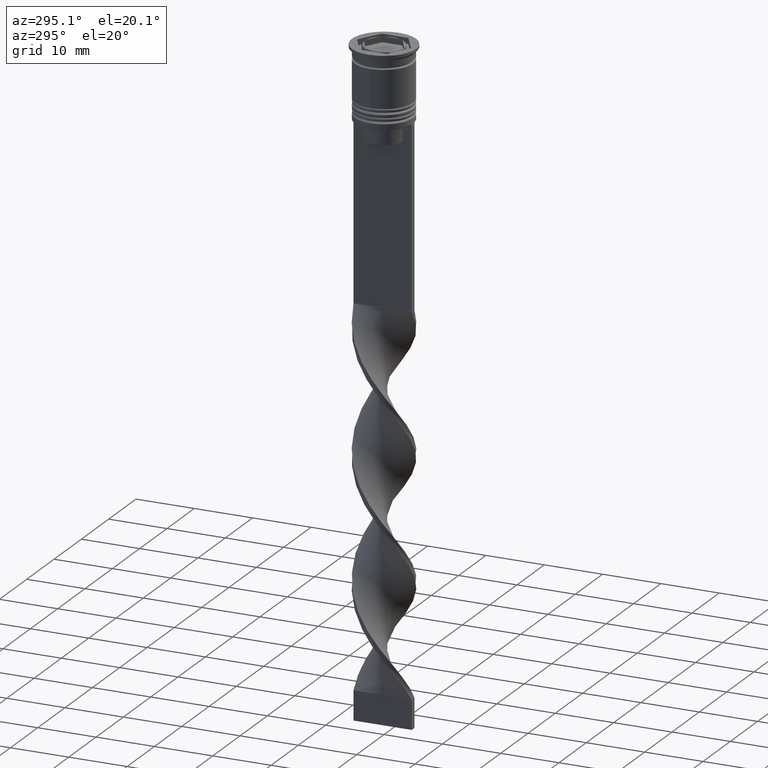
[diagram: clean part render]
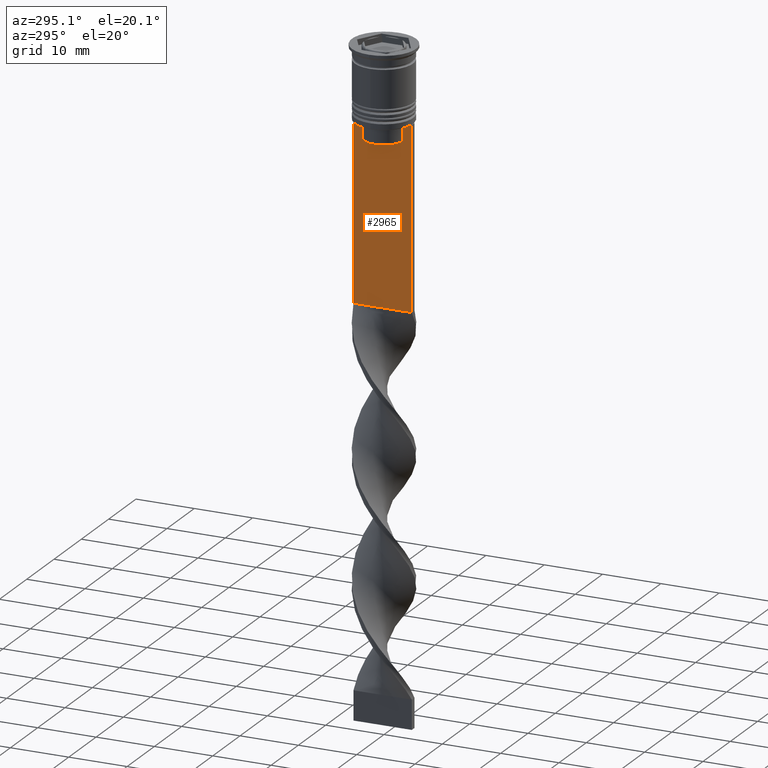
[diagram: same view with one face highlighted and labeled with its STEP entity id]
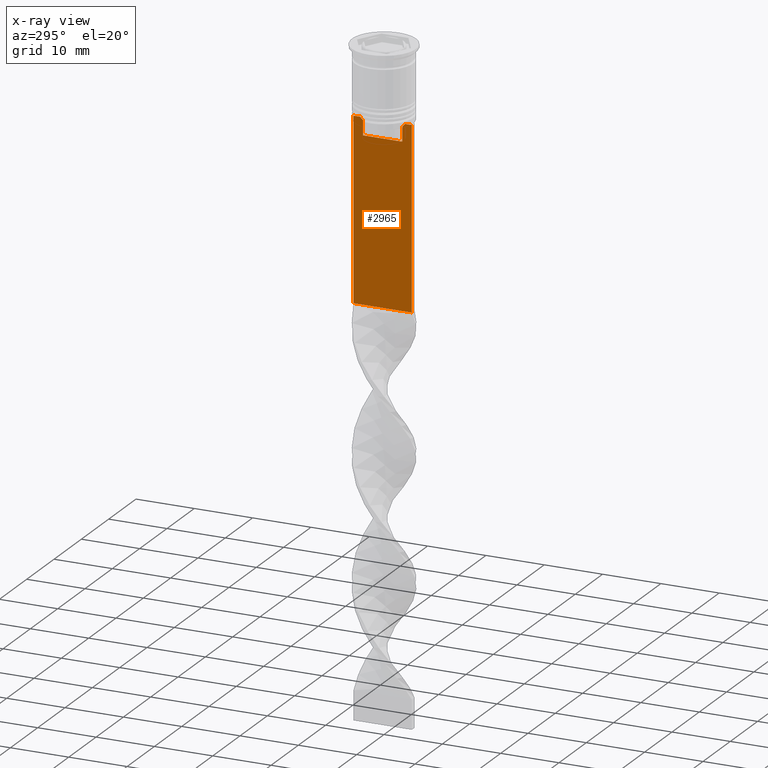
[diagram: x-ray of the same camera — body ghosted, the highlighted face saturated]
A machine part, auxiliary view. The second image highlights one B-rep face of the part: STEP entity #2965.
The next image is the same camera in x-ray: the body ghosted, the highlighted face saturated — about 0% of this face is hidden behind the body in this view.
In plain terms, the highlighted planar face has unit normal (-1, 0, 0).
Its self-contained STEP definition (entity closure, byte-faithful):
#10 = EDGE_CURVE ( 'NONE', #1476, #2890, #869, .T. ) ;
#72 = ORIENTED_EDGE ( 'NONE', *, *, #2470, .F. ) ;
#192 = ORIENTED_EDGE ( 'NONE', *, *, #3045, .F. ) ;
#208 = ORIENTED_EDGE ( 'NONE', *, *, #3204, .F. ) ;
#222 = DIRECTION ( 'NONE',  ( 0.000000000000000000, 1.000000000000000000, 0.000000000000000000 ) ) ;
#268 = DIRECTION ( 'NONE',  ( 0.000000000000000000, -1.000000000000000000, 0.000000000000000000 ) ) ;
#340 = DIRECTION ( 'NONE',  ( 0.000000000000000000, 0.000000000000000000, -1.000000000000000000 ) ) ;
#397 = CARTESIAN_POINT ( 'NONE',  ( -0.5000000000000000000, -3.363034344160045208, -13.00000000000000178 ) ) ;
#436 = ORIENTED_EDGE ( 'NONE', *, *, #682, .F. ) ;
#466 = EDGE_CURVE ( 'NONE', #688, #3192, #2800, .T. ) ;
#505 = LINE ( 'NONE', #3617, #2295 ) ;
#506 = ORIENTED_EDGE ( 'NONE', *, *, #2139, .T. ) ;
#567 = ORIENTED_EDGE ( 'NONE', *, *, #1813, .F. ) ;
#571 = DIRECTION ( 'NONE',  ( -0.000000000000000000, -0.000000000000000000, 1.000000000000000000 ) ) ;
#597 = VECTOR ( 'NONE', #571, 1000.000000000000000 ) ;
#682 = EDGE_CURVE ( 'NONE', #2890, #1889, #505, .T. ) ;
#688 = VERTEX_POINT ( 'NONE', #2774 ) ;
#754 = CARTESIAN_POINT ( 'NONE',  ( -0.5000000000000000000, 3.399999999999998135, -15.50000000000000000 ) ) ;
#772 = CARTESIAN_POINT ( 'NONE',  ( -0.5000000000000000000, 3.867815921162742754, -12.50000000000000000 ) ) ;
#847 = CARTESIAN_POINT ( 'NONE',  ( -0.5000000000000000000, 5.000000000000000888, -12.50000000000000000 ) ) ;
#868 = ORIENTED_EDGE ( 'NONE', *, *, #3081, .F. ) ;
#869 = LINE ( 'NONE', #2062, #1478 ) ;
#897 = VERTEX_POINT ( 'NONE', #3683 ) ;
#922 = ORIENTED_EDGE ( 'NONE', *, *, #10, .F. ) ;
#939 = VERTEX_POINT ( 'NONE', #2524 ) ;
#967 = CARTESIAN_POINT ( 'NONE',  ( -0.5000000000000000000, -3.363034344160045652, -15.50000000000000000 ) ) ;
#1018 = DIRECTION ( 'NONE',  ( 0.000000000000000000, -1.000000000000000000, 0.000000000000000000 ) ) ;
#1111 = CARTESIAN_POINT ( 'NONE',  ( -0.5000000000000000000, 3.531412678228260216, -12.83345231756357840 ) ) ;
#1133 = CARTESIAN_POINT ( 'NONE',  ( -0.5000000000000000000, 3.363034344160045208, -13.00000000000000178 ) ) ;
#1161 = VERTEX_POINT ( 'NONE', #3239 ) ;
#1330 = VERTEX_POINT ( 'NONE', #3026 ) ;
#1410 = ORIENTED_EDGE ( 'NONE', *, *, #466, .F. ) ;
#1412 = DIRECTION ( 'NONE',  ( 0.000000000000000000, -1.000000000000000000, 0.000000000000000000 ) ) ;
#1476 = VERTEX_POINT ( 'NONE', #1700 ) ;
#1478 = VECTOR ( 'NONE', #340, 1000.000000000000000 ) ;
#1496 = EDGE_LOOP ( 'NONE', ( #72, #1410, #2436, #506, #436, #922, #192, #2161, #2631, #567, #868, #208 ) ) ;
#1600 = VECTOR ( 'NONE', #1018, 1000.000000000000000 ) ;
#1620 = CARTESIAN_POINT ( 'NONE',  ( -0.5000000000000000000, 3.363034344160045208, -13.00000000000000178 ) ) ;
#1635 = DIRECTION ( 'NONE',  ( 0.000000000000000000, 0.000000000000000000, -1.000000000000000000 ) ) ;
#1655 = LINE ( 'NONE', #2535, #1833 ) ;
#1671 = CARTESIAN_POINT ( 'NONE',  ( -0.5000000000000000000, 3.363034344160045208, 0.000000000000000000 ) ) ;
#1700 = CARTESIAN_POINT ( 'NONE',  ( -0.5000000000000000000, -4.999999999999999112, -12.50000000000000000 ) ) ;
#1718 = PLANE ( 'NONE',  #2497 ) ;
#1731 = DIRECTION ( 'NONE',  ( 0.000000000000000000, -1.000000000000000000, 0.000000000000000000 ) ) ;
#1792 = FACE_OUTER_BOUND ( 'NONE', #1496, .T. ) ;
#1813 = EDGE_CURVE ( 'NONE', #2748, #1330, #3678, .T. ) ;
#1833 = VECTOR ( 'NONE', #1412, 1000.000000000000000 ) ;
#1843 = LINE ( 'NONE', #2977, #1890 ) ;
#1866 = VERTEX_POINT ( 'NONE', #847 ) ;
#1889 = VERTEX_POINT ( 'NONE', #2397 ) ;
#1890 = VECTOR ( 'NONE', #2996, 1000.000000000000000 ) ;
#2023 = DIRECTION ( 'NONE',  ( -1.000000000000000000, 0.000000000000000000, 0.000000000000000000 ) ) ;
#2062 = CARTESIAN_POINT ( 'NONE',  ( -0.5000000000000000000, -4.999999999999999112, -2.450124378879110054 ) ) ;
#2076 = CARTESIAN_POINT ( 'NONE',  ( -0.5000000000000000000, -4.999999999999999112, -2.450124378879110054 ) ) ;
#2106 = VECTOR ( 'NONE', #268, 1000.000000000000000 ) ;
#2139 = EDGE_CURVE ( 'NONE', #1866, #1889, #2767, .T. ) ;
#2161 = ORIENTED_EDGE ( 'NONE', *, *, #3314, .F. ) ;
#2165 = CARTESIAN_POINT ( 'NONE',  ( -0.5000000000000000000, -3.363034344160045208, 0.000000000000000000 ) ) ;
#2182 = VECTOR ( 'NONE', #1731, 1000.000000000000000 ) ;
#2214 = CARTESIAN_POINT ( 'NONE',  ( -0.5000000000000000000, 3.867815921162742754, -12.50000000000000000 ) ) ;
#2295 = VECTOR ( 'NONE', #222, 1000.000000000000000 ) ;
#2333 = CARTESIAN_POINT ( 'NONE',  ( -0.5000000000000000000, -3.867815921162742754, -12.50000000000000000 ) ) ;
#2345 = LINE ( 'NONE', #3409, #2182 ) ;
#2397 = CARTESIAN_POINT ( 'NONE',  ( -0.5000000000000000000, 5.000000000000000888, -43.50000000000000000 ) ) ;
#2436 = ORIENTED_EDGE ( 'NONE', *, *, #3457, .F. ) ;
#2439 = DIRECTION ( 'NONE',  ( 0.000000000000000000, 0.000000000000000000, -1.000000000000000000 ) ) ;
#2470 = EDGE_CURVE ( 'NONE', #3192, #3348, #3518, .T. ) ;
#2497 = AXIS2_PLACEMENT_3D ( 'NONE', #2076, #2023, #3471 ) ;
#2508 = CARTESIAN_POINT ( 'NONE',  ( -0.5000000000000000000, -4.999999999999999112, -12.50000000000000000 ) ) ;
#2524 = CARTESIAN_POINT ( 'NONE',  ( -0.5000000000000000000, -4.874423042781575788, -12.50000000000000000 ) ) ;
#2535 = CARTESIAN_POINT ( 'NONE',  ( -0.5000000000000000000, -4.999999999999999112, -12.50000000000000000 ) ) ;
#2550 = B_SPLINE_CURVE_WITH_KNOTS ( 'NONE', 3,
 ( #397, #2625, #3483, #2333 ),
 .UNSPECIFIED., .F., .F.,
 ( 4, 4 ),
 ( 0.01632394437298965648, 0.01703543518243618576 ),
 .UNSPECIFIED. ) ;
#2625 = CARTESIAN_POINT ( 'NONE',  ( -0.5000000000000000000, -3.531412985305424801, -12.83345201382502765 ) ) ;
#2631 = ORIENTED_EDGE ( 'NONE', *, *, #2907, .F. ) ;
#2718 = LINE ( 'NONE', #754, #1600 ) ;
#2748 = VERTEX_POINT ( 'NONE', #967 ) ;
#2767 = LINE ( 'NONE', #3344, #3018 ) ;
#2774 = CARTESIAN_POINT ( 'NONE',  ( -0.5000000000000000000, 4.874423042781575788, -12.50000000000000000 ) ) ;
#2800 = LINE ( 'NONE', #2508, #2106 ) ;
#2890 = VERTEX_POINT ( 'NONE', #3184 ) ;
#2907 = EDGE_CURVE ( 'NONE', #1330, #1161, #2550, .T. ) ;
#2965 = ADVANCED_FACE ( 'NONE', ( #1792 ), #1718, .T. ) ;
#2977 = CARTESIAN_POINT ( 'NONE',  ( -0.5000000000000000000, -4.999999999999999112, -12.50000000000000000 ) ) ;
#2996 = DIRECTION ( 'NONE',  ( 0.000000000000000000, -1.000000000000000000, 0.000000000000000000 ) ) ;
#3018 = VECTOR ( 'NONE', #2439, 1000.000000000000000 ) ;
#3026 = CARTESIAN_POINT ( 'NONE',  ( -0.5000000000000000000, -3.363034344160045208, -13.00000000000000178 ) ) ;
#3045 = EDGE_CURVE ( 'NONE', #939, #1476, #1843, .T. ) ;
#3081 = EDGE_CURVE ( 'NONE', #897, #2748, #2718, .T. ) ;
#3184 = CARTESIAN_POINT ( 'NONE',  ( -0.5000000000000000000, -4.999999999999999112, -43.50000000000000000 ) ) ;
#3192 = VERTEX_POINT ( 'NONE', #772 ) ;
#3204 = EDGE_CURVE ( 'NONE', #3348, #897, #3634, .T. ) ;
#3239 = CARTESIAN_POINT ( 'NONE',  ( -0.5000000000000000000, -3.867815921162742754, -12.50000000000000000 ) ) ;
#3314 = EDGE_CURVE ( 'NONE', #1161, #939, #1655, .T. ) ;
#3344 = CARTESIAN_POINT ( 'NONE',  ( -0.5000000000000000000, 5.000000000000000888, -2.450124378879110054 ) ) ;
#3348 = VERTEX_POINT ( 'NONE', #1620 ) ;
#3358 = CARTESIAN_POINT ( 'NONE',  ( -0.5000000000000000000, 3.699657965831574913, -12.66677026074361301 ) ) ;
#3409 = CARTESIAN_POINT ( 'NONE',  ( -0.5000000000000000000, -4.999999999999999112, -12.50000000000000000 ) ) ;
#3457 = EDGE_CURVE ( 'NONE', #1866, #688, #2345, .T. ) ;
#3471 = DIRECTION ( 'NONE',  ( 0.000000000000000000, 0.000000000000000000, 1.000000000000000000 ) ) ;
#3483 = CARTESIAN_POINT ( 'NONE',  ( -0.5000000000000000000, -3.699658232838647365, -12.66676999593996555 ) ) ;
#3500 = VECTOR ( 'NONE', #1635, 1000.000000000000000 ) ;
#3518 = B_SPLINE_CURVE_WITH_KNOTS ( 'NONE', 3,
 ( #2214, #3358, #1111, #1133 ),
 .UNSPECIFIED., .F., .F.,
 ( 4, 4 ),
 ( 0.006644825462451552783, 0.007355321358912435097 ),
 .UNSPECIFIED. ) ;
#3617 = CARTESIAN_POINT ( 'NONE',  ( -0.5000000000000000000, -4.999999999999999112, -43.50000000000000000 ) ) ;
#3634 = LINE ( 'NONE', #1671, #3500 ) ;
#3678 = LINE ( 'NONE', #2165, #597 ) ;
#3683 = CARTESIAN_POINT ( 'NONE',  ( -0.5000000000000000000, 3.363034344160045652, -15.50000000000000000 ) ) ;